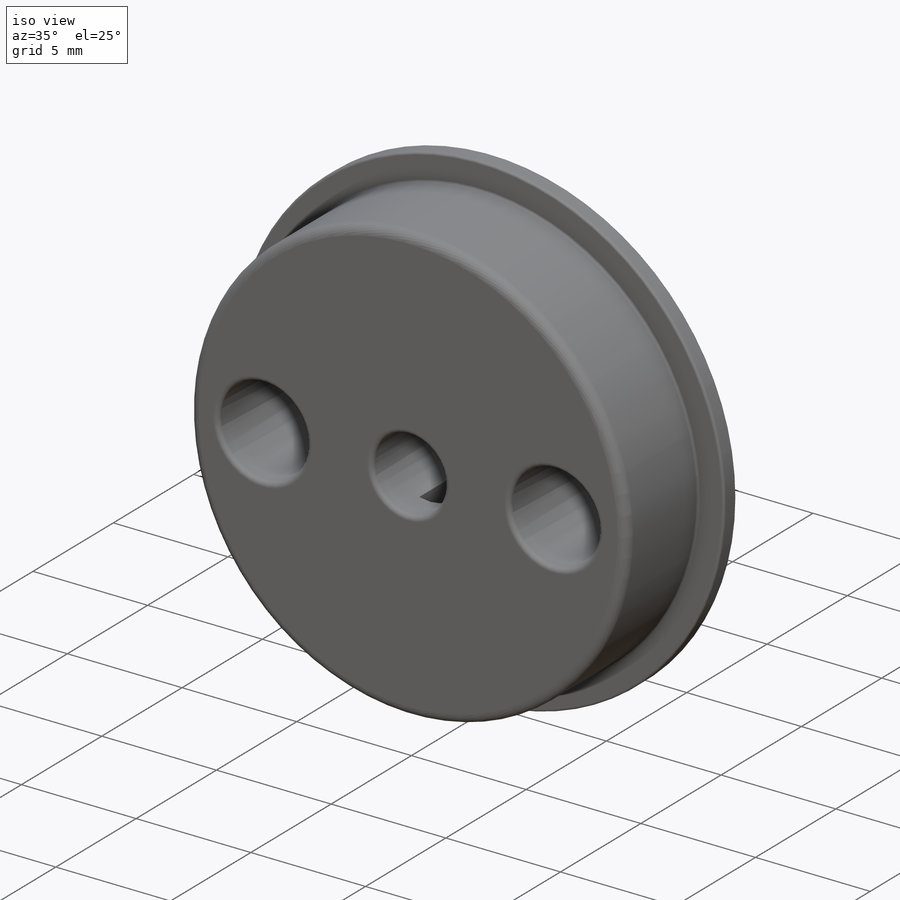
[diagram: iso view]
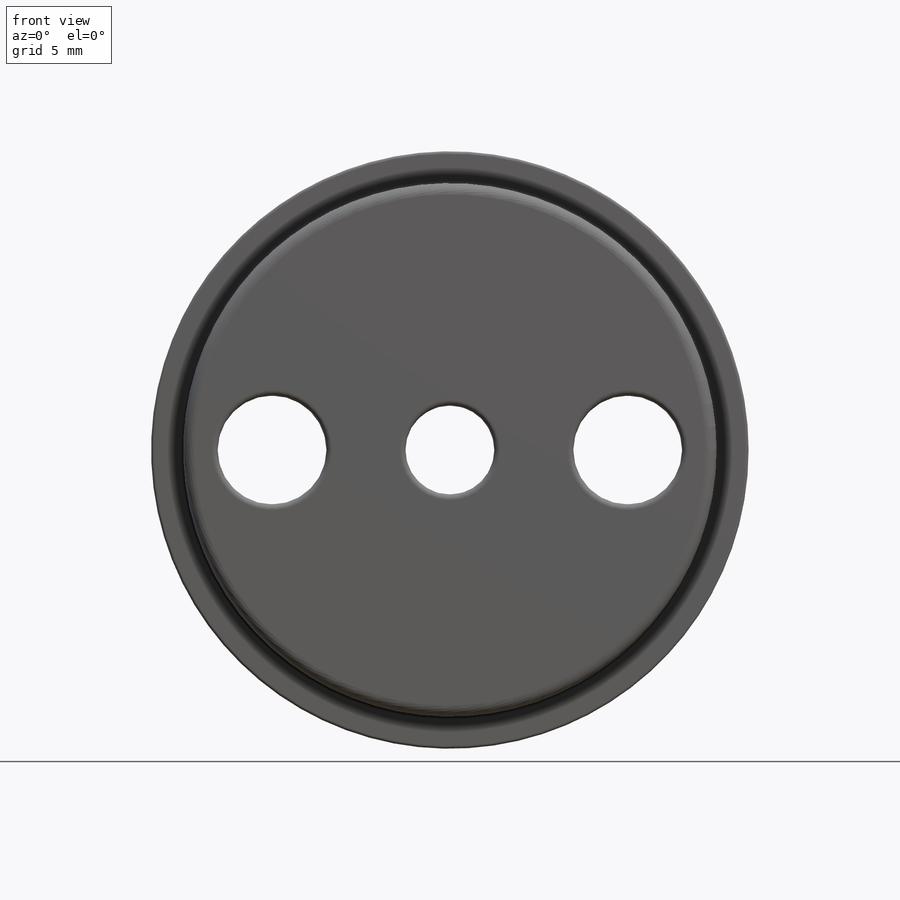
[diagram: front view]
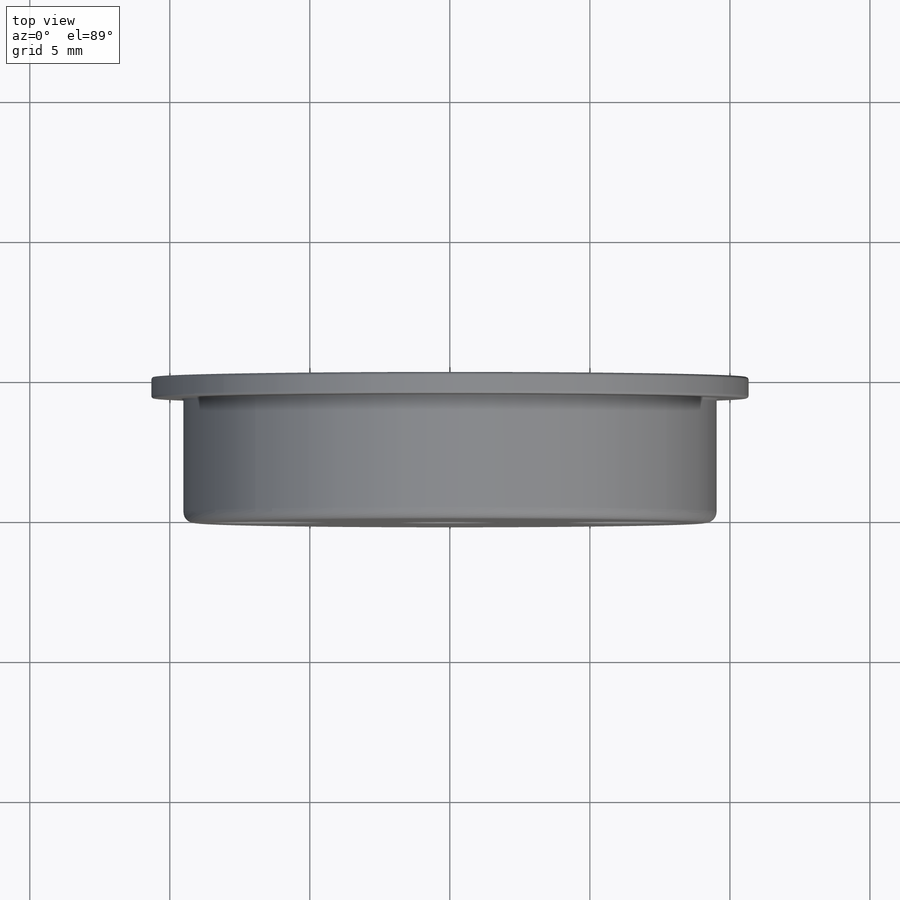
[diagram: top view]
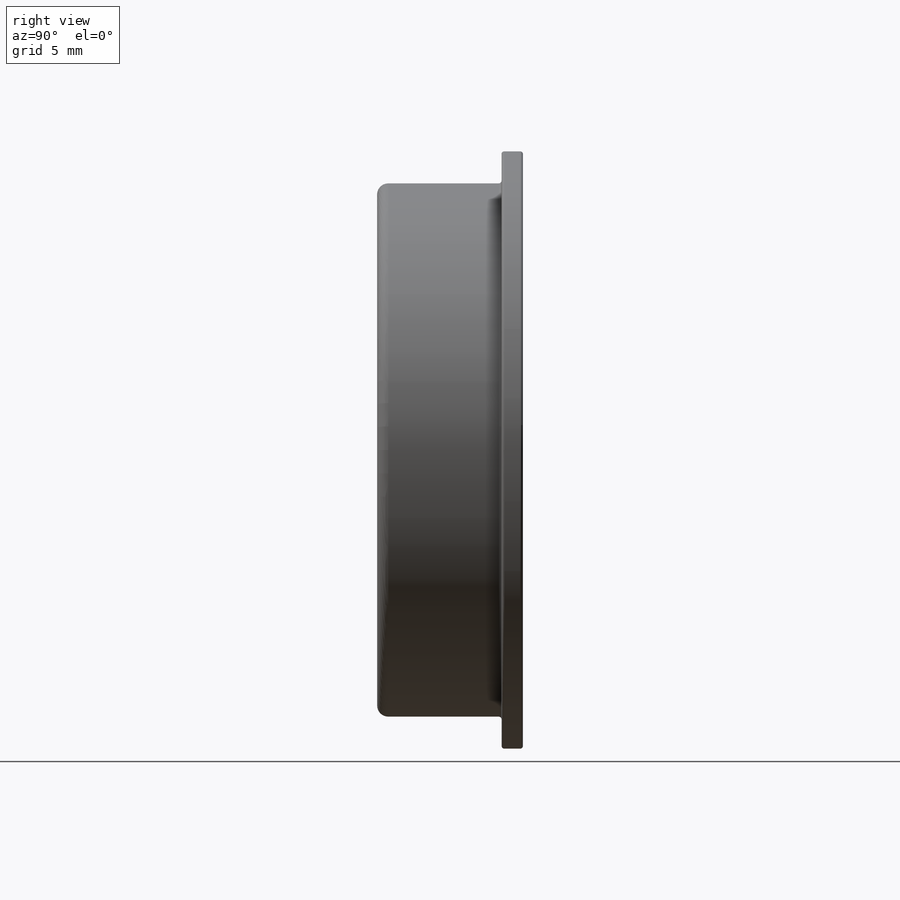
[diagram: right view]
SOLIDWORKS PART (.sldprt)
format: sldprt  version: not decoded by parser v0  size: 649,216 bytes
history: native  units: mm
features: sketch x5, fillet x3, cut_extrude x3, extrude x2, material x1 (+16 scaffold rows collapsed)
feature tree (30):
  scaffold x16  (default folders/planes/origin — collapsed)
  material  "Material <not specified>"
  sketch  "Sketch1"  dims[D1=21.336mm]
  extrude  "Extrude1"  Depth=0.762mm
  sketch  "Sketch2"  dims[D1=19.05mm]
  extrude  "Extrude2"  Depth=4.445mm
  sketch  "Sketch5"  dims[D1=12.7mm D2=3.8862mm]
  fillet  "Fillet1"  Radius=0.099219mm
  fillet  "Fillet2"  Radius=0.396875mm
  sketch  "Sketch3"  dims[D1=3.175mm]
  cut_extrude  "Extrude3"  [1 undecoded]
  sketch  "Sketch4"  dims[D1=4.064mm D2=4.064mm D3=0.4826mm D4=0.4826mm]
  cut_extrude  "Extrude4"  Depth=3.81mm
  cut_extrude  "Extrude5"  [1 undecoded]
  fillet  "Fillet3"  Radius=0.198437mm
decode coverage: 11 of 13 modeling features carry decoded parameters
note: 2 parameter values undecoded
note: suppression state not decoded; provenance and decode notes live in map.json
